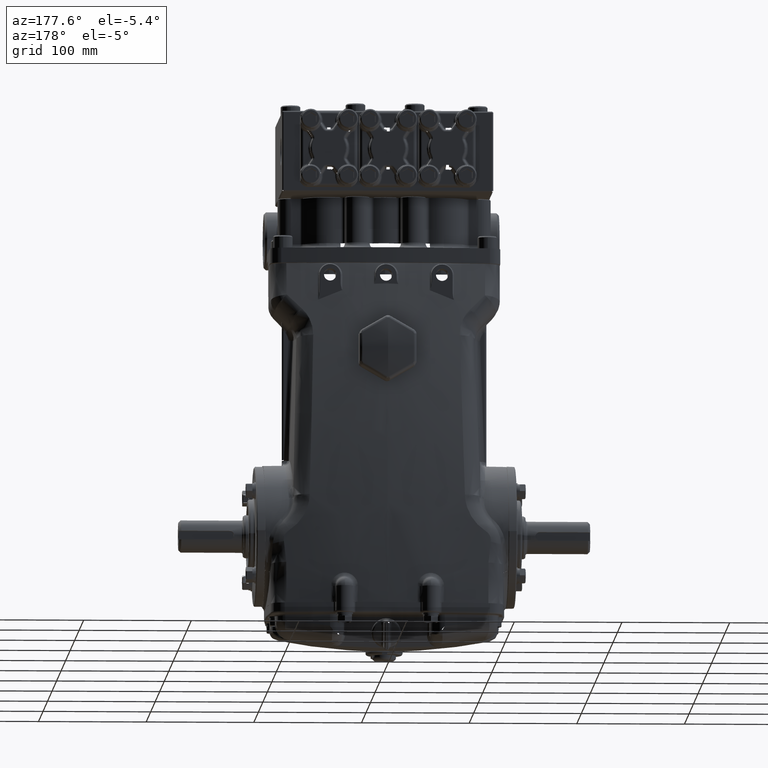
[diagram: clean part render]
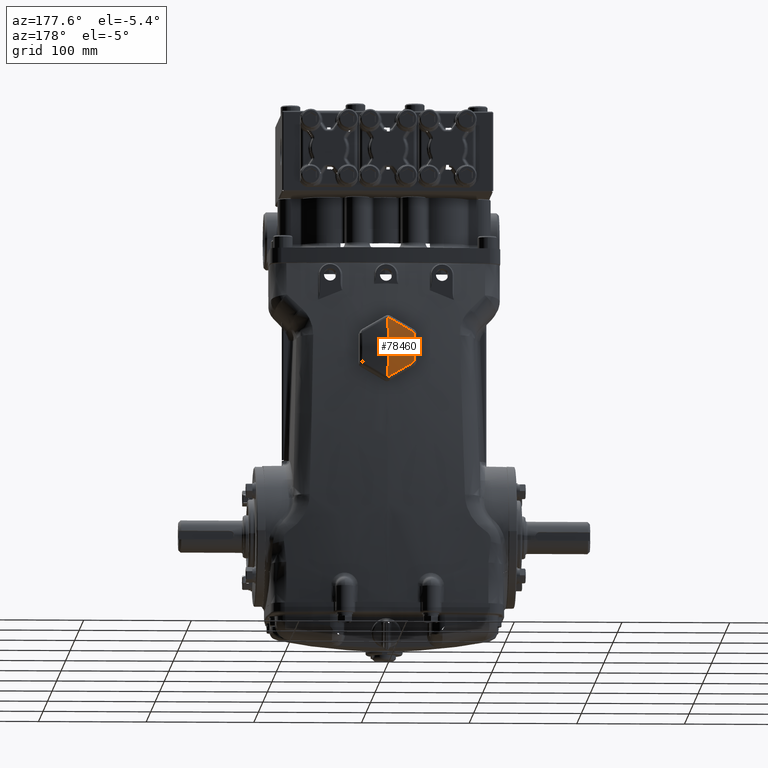
[diagram: same view with one face highlighted and labeled with its STEP entity id]
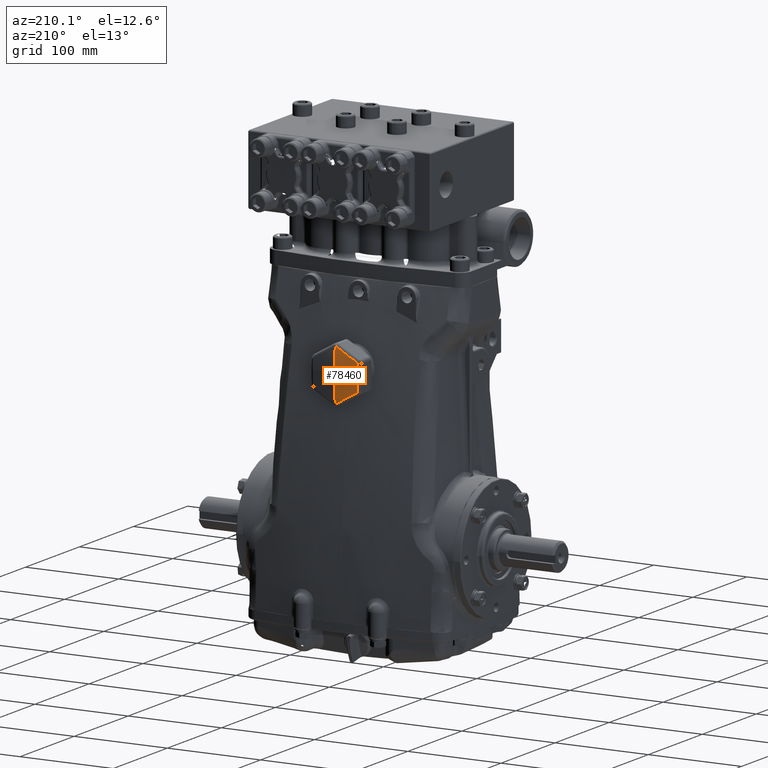
[diagram: same view with one face highlighted and labeled with its STEP entity id]
A machine part, auxiliary view. The second image highlights one B-rep face of the part: STEP entity #78460.
A second angle (auxiliary view) of the same face is appended — the face is thin or edge-on in the first view.
In plain terms, the highlighted spherical surface has radius 141.5 mm.
Its self-contained STEP definition (entity closure, byte-faithful):
#1018 = DIRECTION ( 'NONE',  ( -1.224646799147353700E-16, 0.000000000000000000, -1.000000000000000000 ) ) ;
#2208 = CARTESIAN_POINT ( 'NONE',  ( -0.01055906681798054851, 3.496380883054236222, 5.572109169494758873 ) ) ;
#2443 = CARTESIAN_POINT ( 'NONE',  ( 2.325482175165024057E-16, -1.968503937007873184, 6.653543307086619230 ) ) ;
#4294 = CARTESIAN_POINT ( 'NONE',  ( -0.9312700846327178761, 3.496381150944327221, 6.103685000292432328 ) ) ;
#5286 = CARTESIAN_POINT ( 'NONE',  ( -0.02069678136229825133, 3.496889611842620038, 7.732256481903013956 ) ) ;
#5614 = VERTEX_POINT ( 'NONE', #103711 ) ;
#8338 = CIRCLE ( 'NONE', #67012, 5.490088904175599360 ) ;
#10837 = SPHERICAL_SURFACE ( 'NONE', #100919, 5.570866141732283339 ) ;
#11345 = DIRECTION ( 'NONE',  ( -3.980770499488999971E-16, -1.492788937308374927E-16, -1.000000000000000000 ) ) ;
#12696 = CARTESIAN_POINT ( 'NONE',  ( -0.9150700702123442110, 3.497761556620918366, 6.090393336950864267 ) ) ;
#13210 = CARTESIAN_POINT ( 'NONE',  ( -0.9452372153841812619, 3.497761556620917922, 6.142644365107790883 ) ) ;
#14198 = CARTESIAN_POINT ( 'NONE',  ( 3.761193016503496345E-16, 3.496250359979415911, 7.735675481387933594 ) ) ;
#14420 = ORIENTED_EDGE ( 'NONE', *, *, #88261, .T. ) ;
#15313 = VERTEX_POINT ( 'NONE', #40620 ) ;
#15367 = CARTESIAN_POINT ( 'NONE',  ( 2.325482175165024057E-16, -1.968503937007873184, 6.653543307086619230 ) ) ;
#15679 = VERTEX_POINT ( 'NONE', #51800 ) ;
#16046 = EDGE_CURVE ( 'NONE', #36630, #82727, #40290, .T. ) ;
#16781 = AXIS2_PLACEMENT_3D ( 'NONE', #47764, #72447, #1018 ) ;
#18722 = DIRECTION ( 'NONE',  ( 1.000000000000000000, 5.847332560262138116E-17, -4.097221632919532743E-16 ) ) ;
#20061 = CARTESIAN_POINT ( 'NONE',  ( -0.9196581341159970613, 3.497266399409431070, 6.093042256880697671 ) ) ;
#20247 = DIRECTION ( 'NONE',  ( -0.8660254037844385966, -1.492788937308373941E-16, -0.5000000000000000000 ) ) ;
#21272 = ORIENTED_EDGE ( 'NONE', *, *, #16046, .T. ) ;
#21712 = DIRECTION ( 'NONE',  ( 5.847332560262145511E-17, -1.000000000000000000, 0.000000000000000000 ) ) ;
#23591 = ORIENTED_EDGE ( 'NONE', *, *, #60050, .T. ) ;
#26651 = CIRCLE ( 'NONE', #65255, 5.490088904175596696 ) ;
#26882 = VERTEX_POINT ( 'NONE', #44915 ) ;
#27455 = CARTESIAN_POINT ( 'NONE',  ( -0.9452372153841808178, 3.497761556620918810, 7.164442249065437807 ) ) ;
#27969 = CARTESIAN_POINT ( 'NONE',  ( -0.9150700702123433228, 3.497761556620918810, 7.216693277222363534 ) ) ;
#28486 = CARTESIAN_POINT ( 'NONE',  ( -0.9345430317147699339, 3.496250007600988141, 6.107951202110150746 ) ) ;
#32422 = AXIS2_PLACEMENT_3D ( 'NONE', #92152, #94102, #20247 ) ;
#33978 = DIRECTION ( 'NONE',  ( 1.000000000000000000, 5.847332560262145511E-17, -6.046861208519351922E-32 ) ) ;
#35586 = VERTEX_POINT ( 'NONE', #44295 ) ;
#36630 = VERTEX_POINT ( 'NONE', #103019 ) ;
#39115 = ORIENTED_EDGE ( 'NONE', *, *, #43033, .F. ) ;
#40290 = CIRCLE ( 'NONE', #67088, 5.570866141732282451 ) ;
#40620 = CARTESIAN_POINT ( 'NONE',  ( -0.9452372153841812619, 3.497761556620917922, 6.142644365107790883 ) ) ;
#40740 = CIRCLE ( 'NONE', #32422, 5.490088904175600248 ) ;
#41851 = DIRECTION ( 'NONE',  ( -4.899892438016986835E-32, -1.961524778489672301E-16, -1.000000000000000000 ) ) ;
#43033 = EDGE_CURVE ( 'NONE', #36630, #15679, #72106, .T. ) ;
#43702 = CARTESIAN_POINT ( 'NONE',  ( -0.9397865840383969882, 3.496250713819329281, 6.117040855105909891 ) ) ;
#43903 = CARTESIAN_POINT ( 'NONE',  ( -0.9452372153841805957, -1.968503937007873184, 6.653543307086619230 ) ) ;
#44226 = CARTESIAN_POINT ( 'NONE',  ( -0.9238503706928573589, 3.496889093514760738, 6.096267193216625024 ) ) ;
#44295 = CARTESIAN_POINT ( 'NONE',  ( -0.9150700702123433228, 3.497761556620918810, 7.216693277222363534 ) ) ;
#44915 = CARTESIAN_POINT ( 'NONE',  ( -0.9452372153841808178, 3.497761556620918810, 7.164442249065437807 ) ) ;
#45090 = EDGE_CURVE ( 'NONE', #82727, #5614, #75132, .T. ) ;
#45260 = EDGE_CURVE ( 'NONE', #77377, #15679, #68789, .T. ) ;
#45297 = ORIENTED_EDGE ( 'NONE', *, *, #100628, .T. ) ;
#46374 = CARTESIAN_POINT ( 'NONE',  ( -3.973986679732125633E-16, 3.496250359979414135, 5.571411132785293319 ) ) ;
#47764 = CARTESIAN_POINT ( 'NONE',  ( 2.325482175165024057E-16, -1.968503937007873184, 6.653543307086619230 ) ) ;
#48133 = VERTEX_POINT ( 'NONE', #85517 ) ;
#49479 = CARTESIAN_POINT ( 'NONE',  ( -0.02073428316751429329, 3.496891721304256073, 5.574841415000193479 ) ) ;
#50499 = CARTESIAN_POINT ( 'NONE',  ( -0.02557601438404252109, 3.497266068422367091, 5.576843704375821886 ) ) ;
#51554 = CARTESIAN_POINT ( 'NONE',  ( -0.9397681388712304518, 3.496250007600990362, 7.190085260993097194 ) ) ;
#51800 = CARTESIAN_POINT ( 'NONE',  ( 3.761193016503496345E-16, 3.496250359979415911, 7.735675481387933594 ) ) ;
#53116 = CARTESIAN_POINT ( 'NONE',  ( -0.9445513137787223679, 3.496892240294946497, 6.132155940697384899 ) ) ;
#56392 = ORIENTED_EDGE ( 'NONE', *, *, #103790, .T. ) ;
#59407 = CARTESIAN_POINT ( 'NONE',  ( -0.03016714517183607946, 3.497761556620917922, 7.727592219201187440 ) ) ;
#60050 = EDGE_CURVE ( 'NONE', #26882, #35586, #62964, .T. ) ;
#62297 = DIRECTION ( 'NONE',  ( 0.4999999999999994449, 1.786229409990762335E-16, 0.8660254037844390407 ) ) ;
#62964 = B_SPLINE_CURVE_WITH_KNOTS ( 'NONE', 3,
 ( #27455, #99329, #91471, #66825, #51554, #73704, #67847, #66320, #90962, #27969 ),
 .UNSPECIFIED., .F., .F.,
 ( 4, 2, 2, 2, 4 ),
 ( 0.000000000000000000, 0.0004053234485956844929, 0.0008106468971913689857, 0.001215970345787053533, 0.001621293794382737971 ),
 .UNSPECIFIED. ) ;
#64719 = CARTESIAN_POINT ( 'NONE',  ( -0.03016714517183538904, 3.497761556620918366, 5.579494394972040361 ) ) ;
#65255 = AXIS2_PLACEMENT_3D ( 'NONE', #43903, #18722, #11345 ) ;
#65976 = EDGE_CURVE ( 'NONE', #48133, #15313, #95923, .T. ) ;
#66320 = CARTESIAN_POINT ( 'NONE',  ( -0.9238103613946982984, 3.496892240294947829, 7.210855056802339291 ) ) ;
#66825 = CARTESIAN_POINT ( 'NONE',  ( -0.9418263044820149865, 3.496381150944329441, 7.185117704765938029 ) ) ;
#67012 = AXIS2_PLACEMENT_3D ( 'NONE', #80638, #62297, #86434 ) ;
#67088 = AXIS2_PLACEMENT_3D ( 'NONE', #15367, #70499, #21712 ) ;
#67392 = ORIENTED_EDGE ( 'NONE', *, *, #65976, .T. ) ;
#67847 = CARTESIAN_POINT ( 'NONE',  ( -0.9312602250997866760, 3.496381420831571329, 7.203415804932099320 ) ) ;
#68789 = B_SPLINE_CURVE_WITH_KNOTS ( 'NONE', 3,
 ( #59407, #83538, #5286, #93470, #86130, #14198 ),
 .UNSPECIFIED., .F., .F.,
 ( 4, 2, 4 ),
 ( 0.000000000000000000, 0.0004050438503579294755, 0.0008100877007158591679 ),
 .UNSPECIFIED. ) ;
#68889 = CARTESIAN_POINT ( 'NONE',  ( -0.9452372153841813729, 3.497266409981998336, 6.137346638367292329 ) ) ;
#70499 = DIRECTION ( 'NONE',  ( -1.000000000000000000, -5.847332560262145511E-17, 6.051863453970432140E-32 ) ) ;
#72106 = CIRCLE ( 'NONE', #16781, 5.570866141732283339 ) ;
#72447 = DIRECTION ( 'NONE',  ( 1.000000000000000000, 5.847332560262143046E-17, -1.224646799147353700E-16 ) ) ;
#73704 = CARTESIAN_POINT ( 'NONE',  ( -0.9345180446271307284, 3.496250713819329725, 7.199171137009310328 ) ) ;
#74162 = CARTESIAN_POINT ( 'NONE',  ( -0.005250490801527044407, 3.496250359979414135, 5.571411132785293319 ) ) ;
#75132 = B_SPLINE_CURVE_WITH_KNOTS ( 'NONE', 3,
 ( #46374, #74162, #2208, #49479, #50499, #64719 ),
 .UNSPECIFIED., .F., .F.,
 ( 4, 2, 4 ),
 ( 0.0008100877007158643721, 0.001215690747549289788, 0.001621293794382715203 ),
 .UNSPECIFIED. ) ;
#77377 = VERTEX_POINT ( 'NONE', #97344 ) ;
#78460 = ADVANCED_FACE ( 'NONE', ( #83766 ), #10837, .T. ) ;
#80638 = CARTESIAN_POINT ( 'NONE',  ( -0.4726186076920896872, -1.968503937007873184, 5.834943865961458087 ) ) ;
#82727 = VERTEX_POINT ( 'NONE', #87059 ) ;
#83538 = CARTESIAN_POINT ( 'NONE',  ( -0.02558224618397230213, 3.497266740976355148, 7.730239311866040630 ) ) ;
#83766 = FACE_OUTER_BOUND ( 'NONE', #85821, .T. ) ;
#84623 = CARTESIAN_POINT ( 'NONE',  ( -0.9418336645264895335, 3.496381420831569109, 6.121984543538927070 ) ) ;
#85517 = CARTESIAN_POINT ( 'NONE',  ( -0.9150700702123442110, 3.497761556620918366, 6.090393336950864267 ) ) ;
#85821 = EDGE_LOOP ( 'NONE', ( #39115, #21272, #87158, #56392, #67392, #45297, #23591, #14420, #92191 ) ) ;
#86130 = CARTESIAN_POINT ( 'NONE',  ( -0.005243252059180117733, 3.496250359979415911, 7.735675481387932706 ) ) ;
#86434 = DIRECTION ( 'NONE',  ( 0.8660254037844389297, -4.975963124361247498E-17, -0.4999999999999995004 ) ) ;
#87059 = CARTESIAN_POINT ( 'NONE',  ( -3.973986679732125633E-16, 3.496250359979414135, 5.571411132785293319 ) ) ;
#87158 = ORIENTED_EDGE ( 'NONE', *, *, #45090, .T. ) ;
#88261 = EDGE_CURVE ( 'NONE', #35586, #77377, #40740, .T. ) ;
#90962 = CARTESIAN_POINT ( 'NONE',  ( -0.9196580361519242075, 3.497266409981999224, 7.214044413852112925 ) ) ;
#91471 = CARTESIAN_POINT ( 'NONE',  ( -0.9445404568801087919, 3.496889093514761182, 7.174983140467303677 ) ) ;
#92152 = CARTESIAN_POINT ( 'NONE',  ( -0.4726186076920904089, -1.968503937007873184, 7.472142748211780372 ) ) ;
#92191 = ORIENTED_EDGE ( 'NONE', *, *, #45260, .T. ) ;
#93470 = CARTESIAN_POINT ( 'NONE',  ( -0.01057049554556710284, 3.496381684123273992, 7.734973159955374378 ) ) ;
#94102 = DIRECTION ( 'NONE',  ( 0.5000000000000001110, -1.201496153964547537E-16, -0.8660254037844387076 ) ) ;
#95923 = B_SPLINE_CURVE_WITH_KNOTS ( 'NONE', 3,
 ( #12696, #20061, #44226, #4294, #28486, #43702, #84623, #53116, #68889, #13210 ),
 .UNSPECIFIED., .F., .F.,
 ( 4, 2, 2, 2, 4 ),
 ( 0.000000000000000000, 0.0004053234485956834629, 0.0008106468971913669257, 0.001215970345787050280, 0.001621293794382733851 ),
 .UNSPECIFIED. ) ;
#97344 = CARTESIAN_POINT ( 'NONE',  ( -0.03016714517183607946, 3.497761556620917922, 7.727592219201187440 ) ) ;
#99329 = CARTESIAN_POINT ( 'NONE',  ( -0.9452372153841807068, 3.497266399409431070, 7.169740088925105503 ) ) ;
#100628 = EDGE_CURVE ( 'NONE', #15313, #26882, #26651, .T. ) ;
#100919 = AXIS2_PLACEMENT_3D ( 'NONE', #2443, #33978, #41851 ) ;
#103019 = CARTESIAN_POINT ( 'NONE',  ( -9.319885227762888723E-17, 3.602362204724410155, 6.653543307086618341 ) ) ;
#103711 = CARTESIAN_POINT ( 'NONE',  ( -0.03016714517183538904, 3.497761556620918366, 5.579494394972040361 ) ) ;
#103790 = EDGE_CURVE ( 'NONE', #5614, #48133, #8338, .T. ) ;